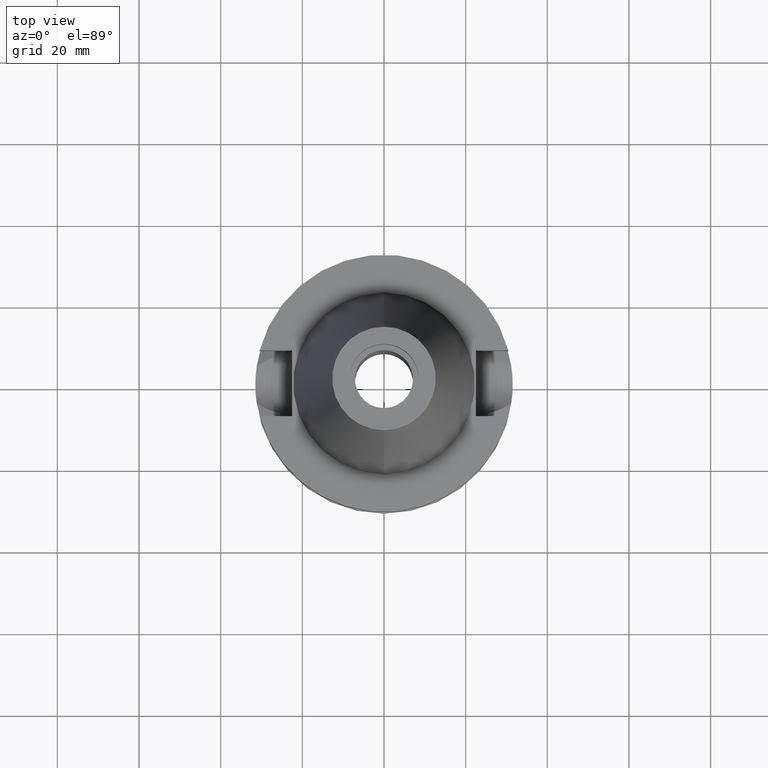
[diagram: clean part render]
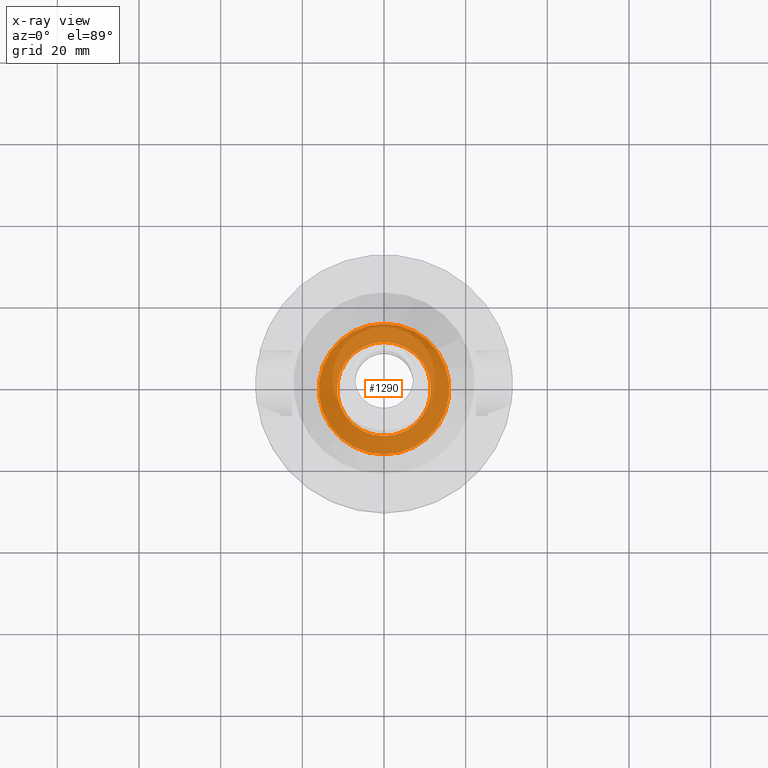
[diagram: x-ray — body ghosted, one internal face saturated and labeled with its STEP entity id]
A machine part, top view, then the same camera in x-ray: the body is ghosted and one INTERNAL B-rep face — a face not visible from any outside direction — is saturated and labeled: STEP entity #1290.
In plain terms, the highlighted planar face has unit normal (0, 0, -1).
Its self-contained STEP definition (entity closure, byte-faithful):
#119 = PLANE ( 'NONE',  #2427 ) ;
#134 = CARTESIAN_POINT ( 'NONE',  ( 0.0000000000000000000, 0.0000000000000000000, -10.80000000000000071 ) ) ;
#194 = VERTEX_POINT ( 'NONE', #925 ) ;
#440 = EDGE_LOOP ( 'NONE', ( #2538, #2671 ) ) ;
#546 = DIRECTION ( 'NONE',  ( 0.0000000000000000000, -1.000000000000000000, 0.0000000000000000000 ) ) ;
#591 = DIRECTION ( 'NONE',  ( 0.0000000000000000000, 1.000000000000000000, 0.0000000000000000000 ) ) ;
#640 = DIRECTION ( 'NONE',  ( 0.0000000000000000000, 0.0000000000000000000, -1.000000000000000000 ) ) ;
#732 = AXIS2_PLACEMENT_3D ( 'NONE', #2960, #2980, #2455 ) ;
#748 = FACE_OUTER_BOUND ( 'NONE', #440, .T. ) ;
#792 = CIRCLE ( 'NONE', #2824, 16.00000000000000000 ) ;
#798 = CARTESIAN_POINT ( 'NONE',  ( 0.0000000000000000000, 11.50000000000000000, -10.80000000000000071 ) ) ;
#925 = CARTESIAN_POINT ( 'NONE',  ( 0.0000000000000000000, -16.00000000000000000, -10.80000000000000071 ) ) ;
#1128 = CIRCLE ( 'NONE', #732, 11.50000000000000000 ) ;
#1211 = CARTESIAN_POINT ( 'NONE',  ( 0.0000000000000000000, 0.0000000000000000000, -10.80000000000000071 ) ) ;
#1226 = DIRECTION ( 'NONE',  ( 0.0000000000000000000, 0.0000000000000000000, -1.000000000000000000 ) ) ;
#1240 = AXIS2_PLACEMENT_3D ( 'NONE', #1332, #2403, #591 ) ;
#1290 = ADVANCED_FACE ( 'NONE', ( #748, #1471 ), #119, .F. ) ;
#1326 = VERTEX_POINT ( 'NONE', #798 ) ;
#1332 = CARTESIAN_POINT ( 'NONE',  ( 0.0000000000000000000, 0.0000000000000000000, -10.80000000000000071 ) ) ;
#1471 = FACE_BOUND ( 'NONE', #3469, .T. ) ;
#1723 = EDGE_CURVE ( 'NONE', #2873, #194, #792, .T. ) ;
#1729 = ORIENTED_EDGE ( 'NONE', *, *, #3027, .F. ) ;
#1744 = VERTEX_POINT ( 'NONE', #2008 ) ;
#1746 = CIRCLE ( 'NONE', #1240, 11.50000000000000000 ) ;
#2008 = CARTESIAN_POINT ( 'NONE',  ( 0.0000000000000000000, -11.50000000000000000, -10.80000000000000071 ) ) ;
#2045 = DIRECTION ( 'NONE',  ( 0.0000000000000000000, -1.000000000000000000, 0.0000000000000000000 ) ) ;
#2135 = EDGE_CURVE ( 'NONE', #194, #2873, #3116, .T. ) ;
#2264 = CARTESIAN_POINT ( 'NONE',  ( 0.0000000000000000000, 0.0000000000000000000, -10.80000000000000071 ) ) ;
#2367 = AXIS2_PLACEMENT_3D ( 'NONE', #2264, #640, #2045 ) ;
#2403 = DIRECTION ( 'NONE',  ( 0.0000000000000000000, 0.0000000000000000000, 1.000000000000000000 ) ) ;
#2427 = AXIS2_PLACEMENT_3D ( 'NONE', #134, #1226, #546 ) ;
#2455 = DIRECTION ( 'NONE',  ( 0.0000000000000000000, -1.000000000000000000, 0.0000000000000000000 ) ) ;
#2538 = ORIENTED_EDGE ( 'NONE', *, *, #1723, .F. ) ;
#2574 = CARTESIAN_POINT ( 'NONE',  ( 0.0000000000000000000, 16.00000000000000000, -10.80000000000000071 ) ) ;
#2671 = ORIENTED_EDGE ( 'NONE', *, *, #2135, .F. ) ;
#2824 = AXIS2_PLACEMENT_3D ( 'NONE', #1211, #2832, #3384 ) ;
#2832 = DIRECTION ( 'NONE',  ( 0.0000000000000000000, 0.0000000000000000000, -1.000000000000000000 ) ) ;
#2873 = VERTEX_POINT ( 'NONE', #2574 ) ;
#2960 = CARTESIAN_POINT ( 'NONE',  ( 0.0000000000000000000, 0.0000000000000000000, -10.80000000000000071 ) ) ;
#2980 = DIRECTION ( 'NONE',  ( 0.0000000000000000000, 0.0000000000000000000, 1.000000000000000000 ) ) ;
#3027 = EDGE_CURVE ( 'NONE', #1326, #1744, #1746, .T. ) ;
#3116 = CIRCLE ( 'NONE', #2367, 16.00000000000000000 ) ;
#3151 = EDGE_CURVE ( 'NONE', #1744, #1326, #1128, .T. ) ;
#3384 = DIRECTION ( 'NONE',  ( 0.0000000000000000000, 1.000000000000000000, 0.0000000000000000000 ) ) ;
#3469 = EDGE_LOOP ( 'NONE', ( #1729, #3482 ) ) ;
#3482 = ORIENTED_EDGE ( 'NONE', *, *, #3151, .F. ) ;